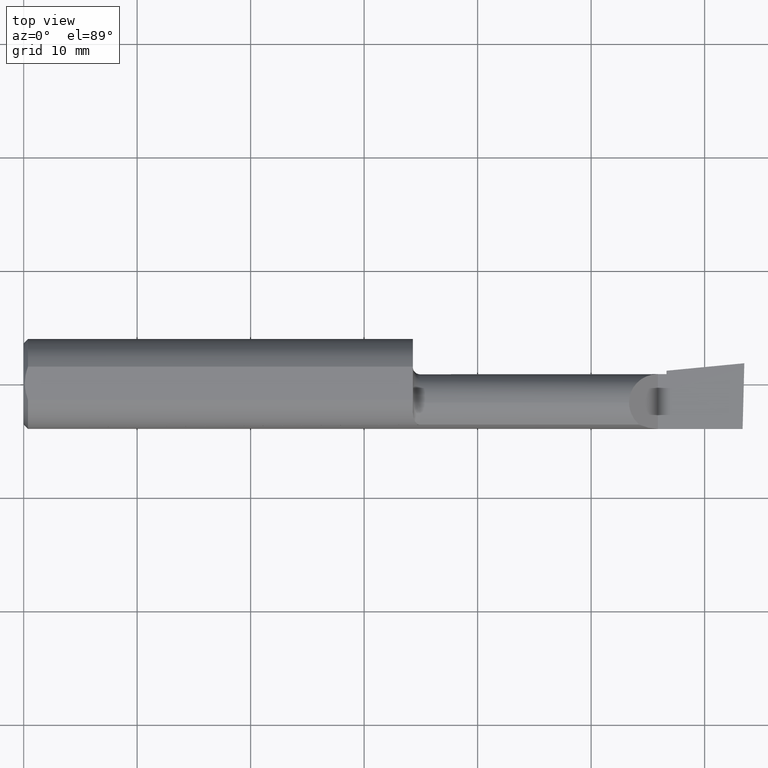
[diagram: clean part render]
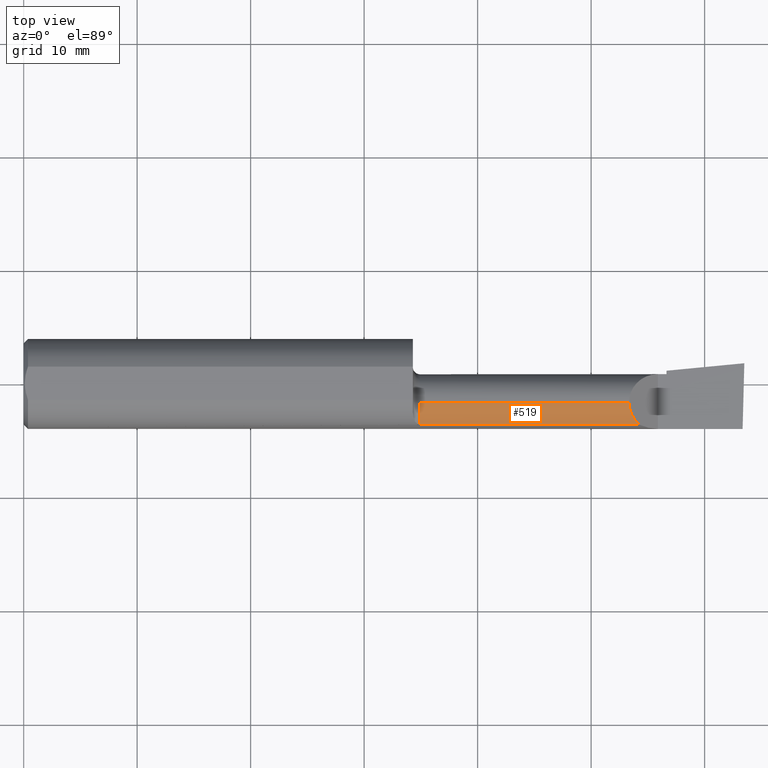
[diagram: same view with one face highlighted and labeled with its STEP entity id]
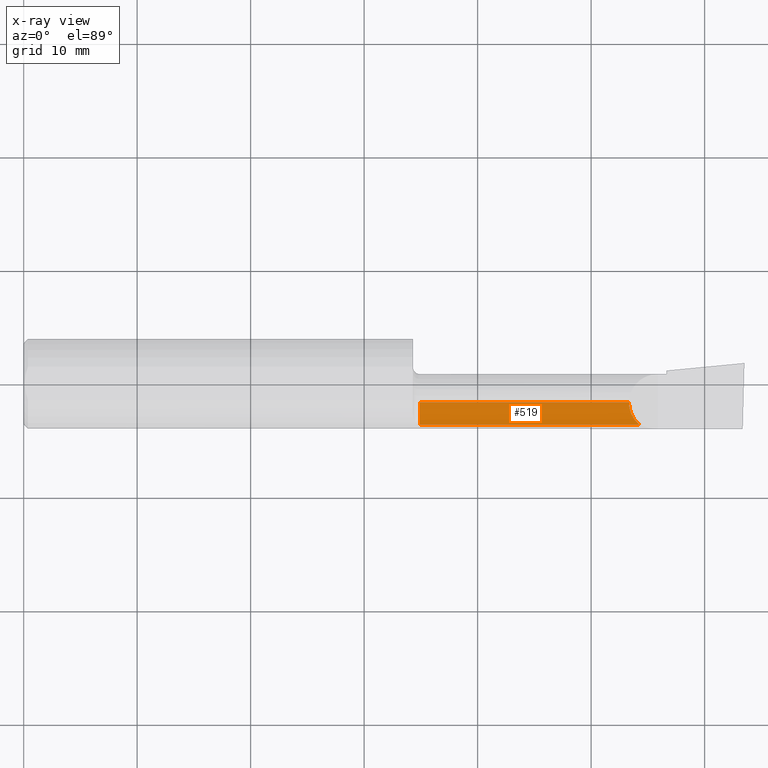
[diagram: x-ray of the same camera — body ghosted, the highlighted face saturated]
A machine part, top view. The second image highlights one B-rep face of the part: STEP entity #519.
The next image is the same camera in x-ray: the body ghosted, the highlighted face saturated — about 0% of this face is hidden behind the body in this view.
In plain terms, the highlighted cylindrical surface (edge-blend (fillet) strip) has radius 2.5375 mm, axis along (-1, -0, -0).
Its self-contained STEP definition (entity closure, byte-faithful):
#19 = DIRECTION ( 'NONE',  ( -1.000000000000000000, -0.0000000000000000000, -0.0000000000000000000 ) ) ;
#38 = ORIENTED_EDGE ( 'NONE', *, *, #549, .F. ) ;
#60 = DIRECTION ( 'NONE',  ( 1.000000000000000000, 0.0000000000000000000, 0.0000000000000000000 ) ) ;
#107 = CARTESIAN_POINT ( 'NONE',  ( 1.375000000000000000, -0.06599999999999998923, 0.09989999999999990554 ) ) ;
#149 = DIRECTION ( 'NONE',  ( 0.0000000000000000000, 0.0000000000000000000, 1.000000000000000000 ) ) ;
#167 = VERTEX_POINT ( 'NONE', #409 ) ;
#177 = ORIENTED_EDGE ( 'NONE', *, *, #476, .T. ) ;
#184 = LINE ( 'NONE', #361, #598 ) ;
#200 = CARTESIAN_POINT ( 'NONE',  ( 1.802499999999999991, -0.1419939393939394501, 0.06484544066771573412 ) ) ;
#208 = EDGE_LOOP ( 'NONE', ( #231, #701, #38, #177 ) ) ;
#231 = ORIENTED_EDGE ( 'NONE', *, *, #255, .T. ) ;
#236 = DIRECTION ( 'NONE',  ( -1.000000000000000000, -0.0000000000000000000, -0.0000000000000000000 ) ) ;
#255 = EDGE_CURVE ( 'NONE', #601, #610, #468, .T. ) ;
#266 = EDGE_CURVE ( 'NONE', #610, #449, #184, .T. ) ;
#291 = CARTESIAN_POINT ( 'NONE',  ( 2.100099999999998968, -0.06599999999999998923, 0.09989999999999991942 ) ) ;
#310 = LINE ( 'NONE', #200, #425 ) ;
#345 = FACE_OUTER_BOUND ( 'NONE', #208, .T. ) ;
#361 = CARTESIAN_POINT ( 'NONE',  ( 0.0000000000000000000, -0.06599999999999998923, 0.09989999999999991942 ) ) ;
#398 = CARTESIAN_POINT ( 'NONE',  ( 1.375000000000000000, -0.06599999999999998923, 0.0000000000000000000 ) ) ;
#408 = CARTESIAN_POINT ( 'NONE',  ( 2.135154559332283597, -0.1419939393939393668, 0.06484544066771584514 ) ) ;
#409 = CARTESIAN_POINT ( 'NONE',  ( 1.375000000000000000, -0.1419939393939392003, 0.06484544066771598392 ) ) ;
#414 = CARTESIAN_POINT ( 'NONE',  ( 2.112547924827750112, -0.1227037540429563173, 0.08745207517224930227 ) ) ;
#425 = VECTOR ( 'NONE', #60, 39.37007874015748143 ) ;
#449 = VERTEX_POINT ( 'NONE', #107 ) ;
#468 =( BOUNDED_CURVE ( )  B_SPLINE_CURVE ( 3, ( #695, #414, #648, #291 ),
 .UNSPECIFIED., .F., .F. ) 
 B_SPLINE_CURVE_WITH_KNOTS ( ( 4, 4 ),
 ( 5.418794317430680962, 6.283185307179586232 ),
 .UNSPECIFIED. ) 
 CURVE ( )  GEOMETRIC_REPRESENTATION_ITEM ( )  RATIONAL_B_SPLINE_CURVE ( ( 1.000000000000000000, 0.9386988813357772798, 0.9386988813357772798, 1.000000000000000000 ) ) 
 REPRESENTATION_ITEM ( '' )  );
#476 = EDGE_CURVE ( 'NONE', #167, #601, #310, .T. ) ;
#519 = ADVANCED_FACE ( 'NONE', ( #345 ), #546, .T. ) ;
#537 = DIRECTION ( 'NONE',  ( -1.000000000000000000, -0.0000000000000000000, -0.0000000000000000000 ) ) ;
#545 = AXIS2_PLACEMENT_3D ( 'NONE', #398, #19, #149 ) ;
#546 = CYLINDRICAL_SURFACE ( 'NONE', #572, 0.09989999999999991942 ) ;
#549 = EDGE_CURVE ( 'NONE', #167, #449, #662, .T. ) ;
#572 = AXIS2_PLACEMENT_3D ( 'NONE', #665, #537, #577 ) ;
#577 = DIRECTION ( 'NONE',  ( 0.0000000000000000000, 0.0000000000000000000, 1.000000000000000000 ) ) ;
#598 = VECTOR ( 'NONE', #236, 39.37007874015748143 ) ;
#601 = VERTEX_POINT ( 'NONE', #408 ) ;
#602 = CARTESIAN_POINT ( 'NONE',  ( 2.100099999999998968, -0.06599999999999998923, 0.09989999999999991942 ) ) ;
#610 = VERTEX_POINT ( 'NONE', #602 ) ;
#648 = CARTESIAN_POINT ( 'NONE',  ( 2.100099999999999412, -0.09571819601686552825, 0.09989999999999994718 ) ) ;
#662 = CIRCLE ( 'NONE', #545, 0.09989999999999990554 ) ;
#665 = CARTESIAN_POINT ( 'NONE',  ( 0.0000000000000000000, -0.06599999999999998923, 0.0000000000000000000 ) ) ;
#695 = CARTESIAN_POINT ( 'NONE',  ( 2.135154559332283597, -0.1419939393939393668, 0.06484544066771584514 ) ) ;
#701 = ORIENTED_EDGE ( 'NONE', *, *, #266, .T. ) ;